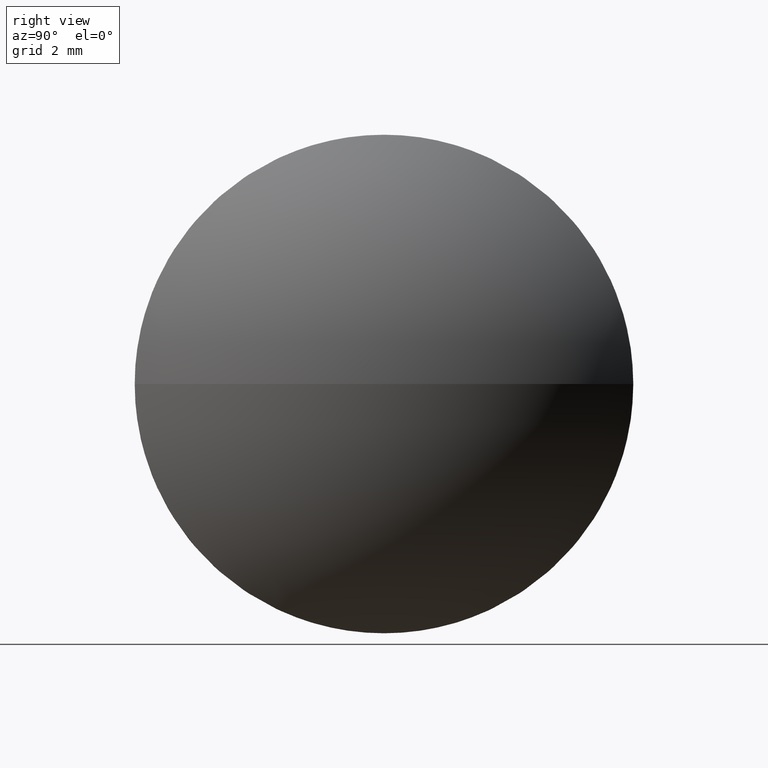
[diagram: clean part render]
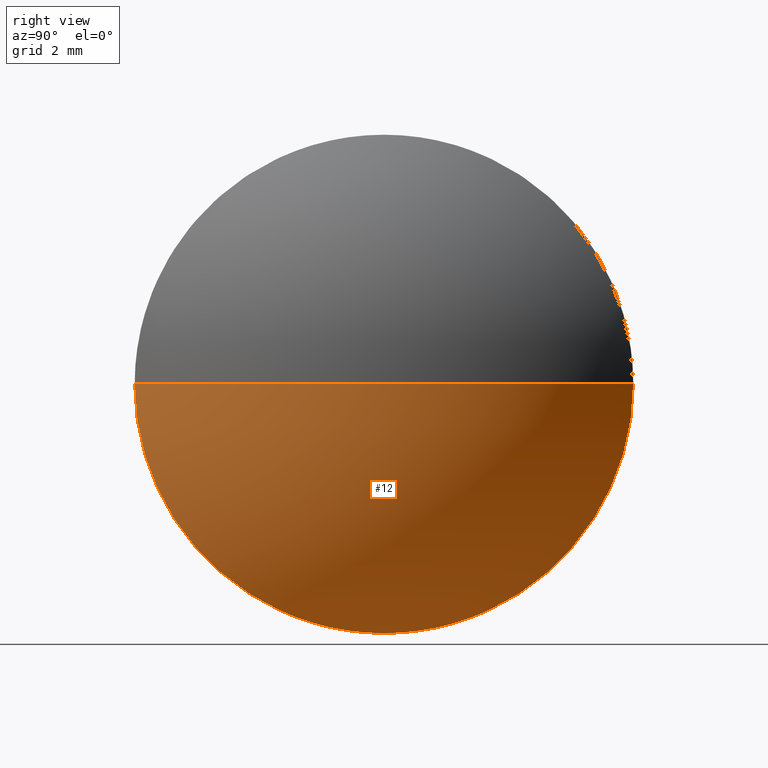
[diagram: same view with one face highlighted and labeled with its STEP entity id]
A machine part, right view. The second image highlights one B-rep face of the part: STEP entity #12.
In plain terms, the highlighted spherical surface has radius 6.4593 mm.
Its self-contained STEP definition (entity closure, byte-faithful):
#2 = AXIS2_PLACEMENT_3D ( 'NONE', #120, #142, #47 ) ;
#4 = DIRECTION ( 'NONE',  ( -0.0000000000000000000, 0.0000000000000000000, -1.000000000000000000 ) ) ;
#12 = ADVANCED_FACE ( 'NONE', ( #100 ), #125, .T. ) ;
#28 = CARTESIAN_POINT ( 'NONE',  ( 412.1988212185968900, 57.37242346822802100, 0.0000000000000000000 ) ) ;
#33 = DIRECTION ( 'NONE',  ( 0.0000000000000000000, 1.000000000000000000, 1.224646799147353700E-016 ) ) ;
#36 = ORIENTED_EDGE ( 'NONE', *, *, #178, .F. ) ;
#44 = DIRECTION ( 'NONE',  ( -0.0000000000000000000, 0.0000000000000000000, 1.000000000000000000 ) ) ;
#46 = AXIS2_PLACEMENT_3D ( 'NONE', #137, #174, #33 ) ;
#47 = DIRECTION ( 'NONE',  ( 0.0000000000000000000, 0.0000000000000000000, 1.000000000000000000 ) ) ;
#50 = EDGE_CURVE ( 'NONE', #132, #86, #67, .T. ) ;
#55 = ORIENTED_EDGE ( 'NONE', *, *, #184, .F. ) ;
#57 = CARTESIAN_POINT ( 'NONE',  ( 412.1988212185968900, 57.37242346822802100, 0.0000000000000000000 ) ) ;
#61 = ORIENTED_EDGE ( 'NONE', *, *, #50, .F. ) ;
#66 = AXIS2_PLACEMENT_3D ( 'NONE', #28, #44, #149 ) ;
#67 = CIRCLE ( 'NONE', #134, 4.999999999999997300 ) ;
#71 = CIRCLE ( 'NONE', #2, 4.999999999999997300 ) ;
#72 = DIRECTION ( 'NONE',  ( 0.0000000000000000000, 1.000000000000000000, 0.0000000000000000000 ) ) ;
#73 = EDGE_CURVE ( 'NONE', #98, #86, #104, .T. ) ;
#74 = VERTEX_POINT ( 'NONE', #158 ) ;
#86 = VERTEX_POINT ( 'NONE', #173 ) ;
#92 = ORIENTED_EDGE ( 'NONE', *, *, #73, .T. ) ;
#98 = VERTEX_POINT ( 'NONE', #170 ) ;
#100 = FACE_OUTER_BOUND ( 'NONE', #186, .T. ) ;
#104 = CIRCLE ( 'NONE', #46, 6.459261603375559000 ) ;
#106 = CARTESIAN_POINT ( 'NONE',  ( 416.2880828219724700, 57.37242346822802100, 0.0000000000000000000 ) ) ;
#120 = CARTESIAN_POINT ( 'NONE',  ( 416.2880828219724700, 57.37242346822802100, 0.0000000000000000000 ) ) ;
#124 = AXIS2_PLACEMENT_3D ( 'NONE', #57, #4, #72 ) ;
#125 = SPHERICAL_SURFACE ( 'NONE', #124, 6.459261603375562500 ) ;
#132 = VERTEX_POINT ( 'NONE', #138 ) ;
#134 = AXIS2_PLACEMENT_3D ( 'NONE', #106, #162, #136 ) ;
#136 = DIRECTION ( 'NONE',  ( 0.0000000000000000000, 0.0000000000000000000, 1.000000000000000000 ) ) ;
#137 = CARTESIAN_POINT ( 'NONE',  ( 412.1988212185968900, 57.37242346822802100, 0.0000000000000000000 ) ) ;
#138 = CARTESIAN_POINT ( 'NONE',  ( 416.2880828219724700, 57.37242346822802100, -4.999999999999997300 ) ) ;
#142 = DIRECTION ( 'NONE',  ( -1.000000000000000000, -0.0000000000000000000, -0.0000000000000000000 ) ) ;
#149 = DIRECTION ( 'NONE',  ( 1.000000000000000000, 0.0000000000000000000, 0.0000000000000000000 ) ) ;
#158 = CARTESIAN_POINT ( 'NONE',  ( 416.2880828219724700, 62.37242346822802100, 0.0000000000000000000 ) ) ;
#162 = DIRECTION ( 'NONE',  ( -1.000000000000000000, -0.0000000000000000000, -0.0000000000000000000 ) ) ;
#163 = CIRCLE ( 'NONE', #66, 6.459261603375566100 ) ;
#170 = CARTESIAN_POINT ( 'NONE',  ( 418.6580828219724700, 57.37242346822802100, 0.0000000000000000000 ) ) ;
#173 = CARTESIAN_POINT ( 'NONE',  ( 416.2880828219724700, 52.37242346822802800, -6.123233995736764300E-016 ) ) ;
#174 = DIRECTION ( 'NONE',  ( 0.0000000000000000000, 1.224646799147353200E-016, -1.000000000000000000 ) ) ;
#178 = EDGE_CURVE ( 'NONE', #74, #132, #71, .T. ) ;
#184 = EDGE_CURVE ( 'NONE', #98, #74, #163, .T. ) ;
#186 = EDGE_LOOP ( 'NONE', ( #55, #92, #61, #36 ) ) ;